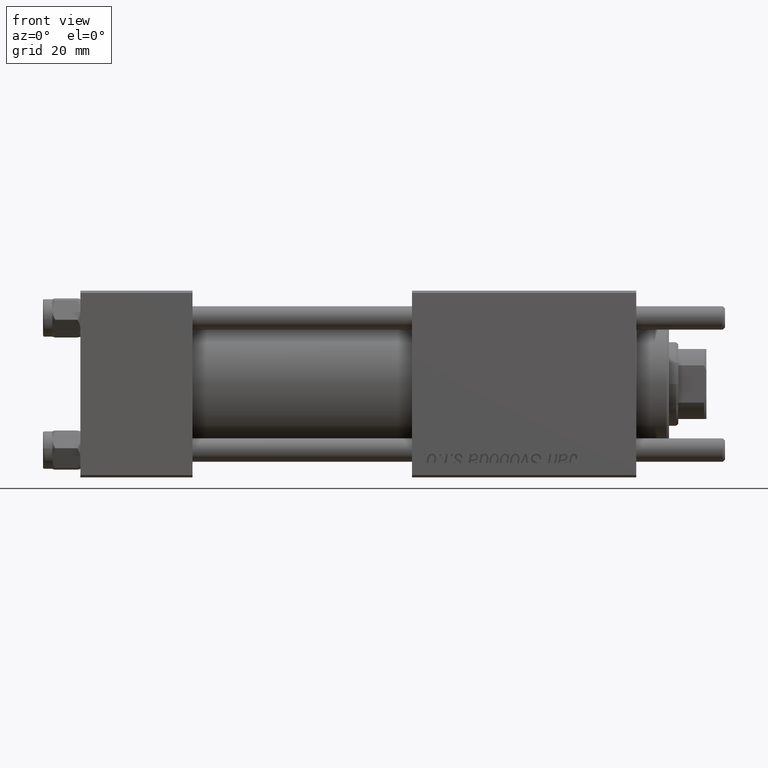
[diagram: clean part render]
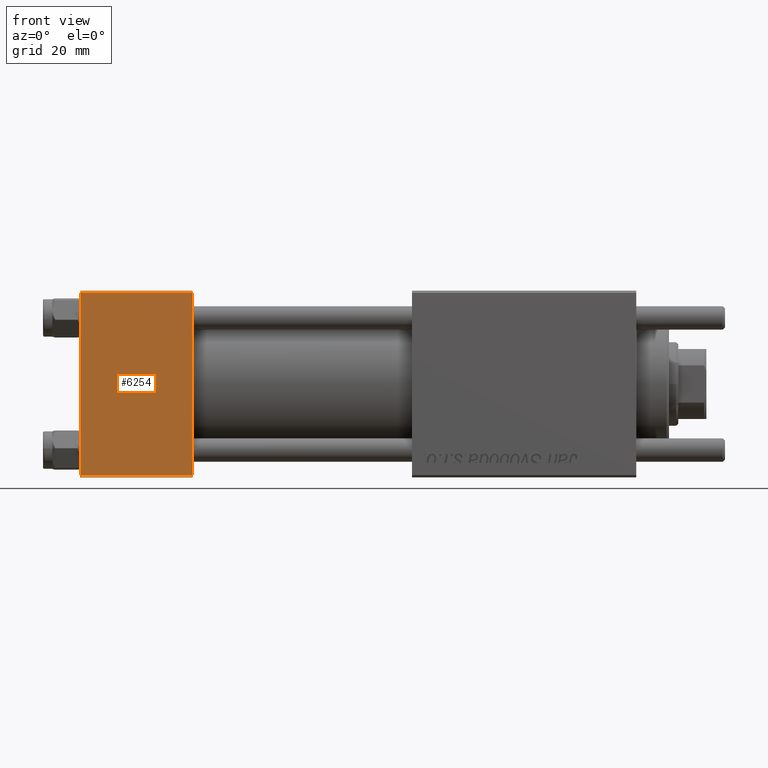
[diagram: same view with one face highlighted and labeled with its STEP entity id]
A machine part, front view. The second image highlights one B-rep face of the part: STEP entity #6254.
In plain terms, the highlighted planar face has unit normal (0, 1, 0).
Its self-contained STEP definition (entity closure, byte-faithful):
#486 = CARTESIAN_POINT ( 'NONE',  ( 24.00000000000000000, -20.00000000000000355, 19.99999999999998934 ) ) ;
#2591 = ORIENTED_EDGE ( 'NONE', *, *, #8647, .T. ) ;
#4243 = PLANE ( 'NONE',  #49010 ) ;
#6254 = ADVANCED_FACE ( 'NONE', ( #48357 ), #4243, .F. ) ;
#8092 = VECTOR ( 'NONE', #37929, 1000.000000000000000 ) ;
#8250 = EDGE_LOOP ( 'NONE', ( #35813, #43233, #17629, #2591 ) ) ;
#8261 = VERTEX_POINT ( 'NONE', #39387 ) ;
#8647 = EDGE_CURVE ( 'NONE', #8261, #53255, #10926, .T. ) ;
#10926 = LINE ( 'NONE', #15507, #14338 ) ;
#12213 = CARTESIAN_POINT ( 'NONE',  ( 24.00000000000000000, -20.00000000000000000, -19.49999999999999645 ) ) ;
#14338 = VECTOR ( 'NONE', #28417, 1000.000000000000000 ) ;
#15229 = VERTEX_POINT ( 'NONE', #12213 ) ;
#15399 = EDGE_CURVE ( 'NONE', #45405, #15229, #26950, .T. ) ;
#15507 = CARTESIAN_POINT ( 'NONE',  ( 24.00000000000000000, -20.00000000000000355, 19.49999999999998224 ) ) ;
#16684 = DIRECTION ( 'NONE',  ( 0.000000000000000000, 8.673617379884036705E-17, -1.000000000000000000 ) ) ;
#17629 = ORIENTED_EDGE ( 'NONE', *, *, #46478, .F. ) ;
#17702 = DIRECTION ( 'NONE',  ( 0.000000000000000000, -8.673617379884036705E-17, 1.000000000000000000 ) ) ;
#20993 = LINE ( 'NONE', #38463, #34079 ) ;
#26950 = LINE ( 'NONE', #44406, #8092 ) ;
#27929 = EDGE_CURVE ( 'NONE', #53255, #45405, #20993, .T. ) ;
#28417 = DIRECTION ( 'NONE',  ( -1.000000000000000000, 0.000000000000000000, 0.000000000000000000 ) ) ;
#34079 = VECTOR ( 'NONE', #16684, 1000.000000000000000 ) ;
#35813 = ORIENTED_EDGE ( 'NONE', *, *, #27929, .T. ) ;
#36131 = CARTESIAN_POINT ( 'NONE',  ( 24.00000000000000000, -20.00000000000000355, 19.99999999999998934 ) ) ;
#37929 = DIRECTION ( 'NONE',  ( 1.000000000000000000, 0.000000000000000000, 0.000000000000000000 ) ) ;
#38463 = CARTESIAN_POINT ( 'NONE',  ( 0.000000000000000000, -20.00000000000000355, 19.99999999999998934 ) ) ;
#38749 = LINE ( 'NONE', #36131, #40896 ) ;
#39387 = CARTESIAN_POINT ( 'NONE',  ( 24.00000000000000000, -20.00000000000000355, 19.49999999999998224 ) ) ;
#39867 = DIRECTION ( 'NONE',  ( 0.000000000000000000, 8.673617379884036705E-17, -1.000000000000000000 ) ) ;
#40896 = VECTOR ( 'NONE', #39867, 1000.000000000000000 ) ;
#43233 = ORIENTED_EDGE ( 'NONE', *, *, #15399, .T. ) ;
#44061 = DIRECTION ( 'NONE',  ( -0.000000000000000000, 1.000000000000000000, 8.673617379884036705E-17 ) ) ;
#44406 = CARTESIAN_POINT ( 'NONE',  ( 24.00000000000000000, -20.00000000000000000, -19.49999999999999645 ) ) ;
#45405 = VERTEX_POINT ( 'NONE', #56290 ) ;
#46478 = EDGE_CURVE ( 'NONE', #8261, #15229, #38749, .T. ) ;
#46889 = CARTESIAN_POINT ( 'NONE',  ( 0.000000000000000000, -20.00000000000000355, 19.49999999999998224 ) ) ;
#48357 = FACE_OUTER_BOUND ( 'NONE', #8250, .T. ) ;
#49010 = AXIS2_PLACEMENT_3D ( 'NONE', #486, #44061, #17702 ) ;
#53255 = VERTEX_POINT ( 'NONE', #46889 ) ;
#56290 = CARTESIAN_POINT ( 'NONE',  ( 0.000000000000000000, -20.00000000000000000, -19.49999999999999645 ) ) ;